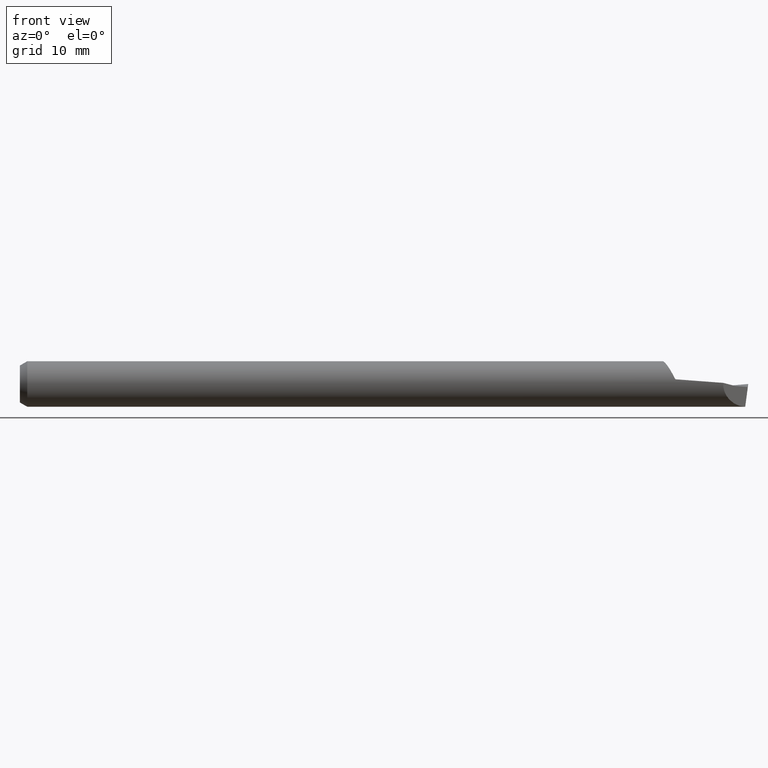
[diagram: clean part render]
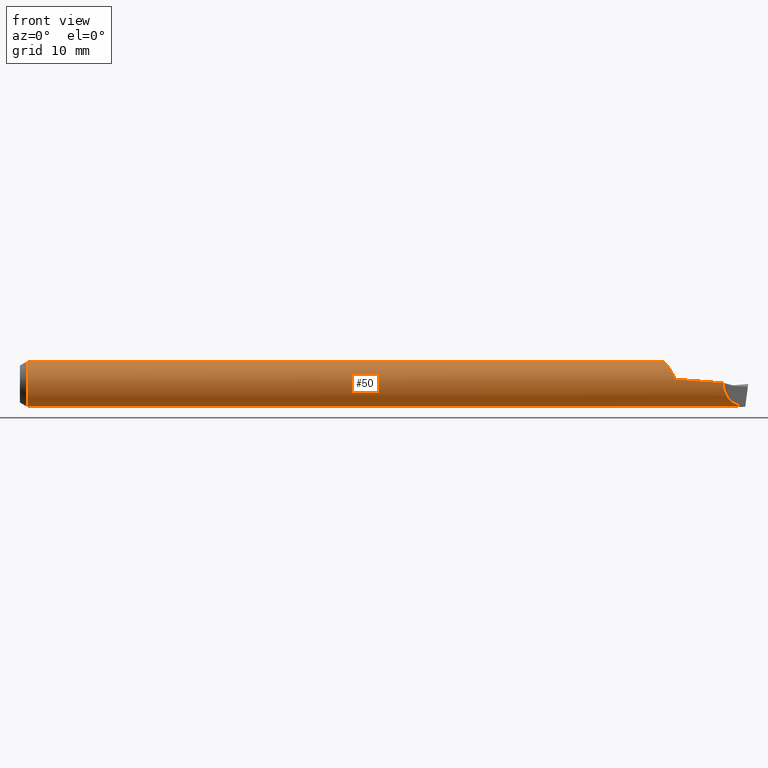
[diagram: same view with one face highlighted and labeled with its STEP entity id]
A machine part, front view. The second image highlights one B-rep face of the part: STEP entity #50.
In plain terms, the highlighted cylindrical surface (edge-blend (fillet) strip) has radius 2.3787 mm, axis along (-1, -0, -0).
Its self-contained STEP definition (entity closure, byte-faithful):
#29 = DIRECTION ( 'NONE',  ( 0.000000000000000000, 0.000000000000000000, 1.000000000000000000 ) ) ;
#47 = VECTOR ( 'NONE', #77, 39.37007874015748143 ) ;
#50 = ADVANCED_FACE ( 'NONE', ( #596 ), #456, .T. ) ;
#56 = VERTEX_POINT ( 'NONE', #669 ) ;
#63 = CARTESIAN_POINT ( 'NONE',  ( 2.660267250213738333, -0.04047724806400845171, 0.08466018272255887434 ) ) ;
#77 = DIRECTION ( 'NONE',  ( -1.000000000000000000, -0.000000000000000000, -0.000000000000000000 ) ) ;
#80 = CARTESIAN_POINT ( 'NONE',  ( 2.648853733171861347, -8.222118150690407239E-07, 0.09365456280322455307 ) ) ;
#107 = EDGE_LOOP ( 'NONE', ( #579, #659, #437, #317, #308, #114, #130, #220 ) ) ;
#114 = ORIENTED_EDGE ( 'NONE', *, *, #294, .T. ) ;
#117 = DIRECTION ( 'NONE',  ( 1.000000000000000000, -0.000000000000000000, -0.000000000000000000 ) ) ;
#123 = CARTESIAN_POINT ( 'NONE',  ( 2.897117201850305079, -0.09353279814969600592, 0.004683820052929582589 ) ) ;
#130 = ORIENTED_EDGE ( 'NONE', *, *, #411, .T. ) ;
#132 = CARTESIAN_POINT ( 'NONE',  ( 0.03057069675359059061, 0.000000000000000000, 0.000000000000000000 ) ) ;
#144 = CARTESIAN_POINT ( 'NONE',  ( 2.894336912536108919, -0.09631308746389261044, -0.05083672434967949350 ) ) ;
#152 = EDGE_CURVE ( 'NONE', #638, #416, #482, .T. ) ;
#154 = VERTEX_POINT ( 'NONE', #662 ) ;
#160 = CARTESIAN_POINT ( 'NONE',  ( 2.668957525983355783, -0.05845340694801681725, 0.07316804903374447833 ) ) ;
#169 = DIRECTION ( 'NONE',  ( -1.000000000000000000, -0.000000000000000000, -0.000000000000000000 ) ) ;
#173 = VERTEX_POINT ( 'NONE', #406 ) ;
#210 = CARTESIAN_POINT ( 'NONE',  ( 2.668921519492839511, -0.05838966857612346018, 0.07321969953285870081 ) ) ;
#212 = CARTESIAN_POINT ( 'NONE',  ( 2.676653163846024697, -0.07108318674311248087, 0.06187157980703874433 ) ) ;
#214 = AXIS2_PLACEMENT_3D ( 'NONE', #404, #291, #29 ) ;
#220 = ORIENTED_EDGE ( 'NONE', *, *, #312, .F. ) ;
#226 = CARTESIAN_POINT ( 'NONE',  ( 2.700193042709059466, -0.09159678206204596718, 0.01949988679965270963 ) ) ;
#227 = CARTESIAN_POINT ( 'NONE',  ( 2.652848608369792860, -0.01951221009786592228, 0.09225725620059177512 ) ) ;
#231 = CARTESIAN_POINT ( 'NONE',  ( 2.987553922861389655, 0.000000000000000000, -0.09364999999999999714 ) ) ;
#232 = DIRECTION ( 'NONE',  ( -1.000000000000000000, -0.000000000000000000, -0.000000000000000000 ) ) ;
#251 = CARTESIAN_POINT ( 'NONE',  ( 2.987533092774547150, -0.003116907225453840850, -0.09359811637713615073 ) ) ;
#258 = CARTESIAN_POINT ( 'NONE',  ( 2.669408579989107189, -0.05925361579904375731, 0.07252248217185128243 ) ) ;
#259 = VERTEX_POINT ( 'NONE', #310 ) ;
#265 = CARTESIAN_POINT ( 'NONE',  ( 0.03057069675359059061, 1.146881727401496266E-17, -0.09364999999999999714 ) ) ;
#269 = VERTEX_POINT ( 'NONE', #265 ) ;
#284 = CARTESIAN_POINT ( 'NONE',  ( 0.000000000000000000, 0.000000000000000000, 0.09364999999999999714 ) ) ;
#289 = CARTESIAN_POINT ( 'NONE',  ( 2.700000000000000178, 0.000000000000000000, -0.09364999999999999714 ) ) ;
#291 = DIRECTION ( 'NONE',  ( -1.000000000000000000, -0.000000000000000000, -0.000000000000000000 ) ) ;
#294 = EDGE_CURVE ( 'NONE', #154, #173, #569, .T. ) ;
#306 = CARTESIAN_POINT ( 'NONE',  ( 2.693124300786492231, -0.08870291174945736656, 0.03325054257018163206 ) ) ;
#308 = ORIENTED_EDGE ( 'NONE', *, *, #535, .F. ) ;
#310 = CARTESIAN_POINT ( 'NONE',  ( 0.03057069675359059061, 0.000000000000000000, 0.09364999999999999714 ) ) ;
#312 = EDGE_CURVE ( 'NONE', #269, #259, #554, .T. ) ;
#314 = CARTESIAN_POINT ( 'NONE',  ( 2.668578502057591617, -0.05777139929222745163, 0.07370850168012961501 ) ) ;
#317 = ORIENTED_EDGE ( 'NONE', *, *, #152, .T. ) ;
#334 = LINE ( 'NONE', #648, #47 ) ;
#378 = EDGE_CURVE ( 'NONE', #56, #269, #334, .T. ) ;
#381 = CARTESIAN_POINT ( 'NONE',  ( 2.798652350113996157, -0.09316285039222937936, 0.01207143284203153130 ) ) ;
#382 = CARTESIAN_POINT ( 'NONE',  ( 2.658214927748086431, -0.03519650015763909484, 0.08695964677823005140 ) ) ;
#383 = EDGE_CURVE ( 'NONE', #56, #492, #586, .T. ) ;
#388 = DIRECTION ( 'NONE',  ( 0.000000000000000000, 0.000000000000000000, 1.000000000000000000 ) ) ;
#402 = CARTESIAN_POINT ( 'NONE',  ( 2.987533092774547150, -0.003116907225453840850, -0.09359811637713615073 ) ) ;
#404 = CARTESIAN_POINT ( 'NONE',  ( 0.000000000000000000, 0.000000000000000000, 0.000000000000000000 ) ) ;
#406 = CARTESIAN_POINT ( 'NONE',  ( 2.648853733171861347, -8.222118150690407239E-07, 0.09365456280322455307 ) ) ;
#411 = EDGE_CURVE ( 'NONE', #173, #259, #641, .T. ) ;
#416 = VERTEX_POINT ( 'NONE', #123 ) ;
#430 = VECTOR ( 'NONE', #169, 39.37007874015748143 ) ;
#431 = CARTESIAN_POINT ( 'NONE',  ( 2.897117201850305523, -0.09353279814969600592, 0.004683820052929582589 ) ) ;
#437 = ORIENTED_EDGE ( 'NONE', *, *, #679, .T. ) ;
#441 =( BOUNDED_CURVE ( )  B_SPLINE_CURVE ( 3, ( #524, #565, #567, #672 ),
 .UNSPECIFIED., .F., .T. ) 
 B_SPLINE_CURVE_WITH_KNOTS ( ( 4, 4 ),
 ( 6.212232684215121203, 6.245521343679132364 ),
 .UNSPECIFIED. ) 
 CURVE ( )  GEOMETRIC_REPRESENTATION_ITEM ( )  RATIONAL_B_SPLINE_CURVE ( ( 1.000000000000000000, 0.9999076575611175466, 0.9999076575611175466, 1.000000000000000000 ) ) 
 REPRESENTATION_ITEM ( '' )  );
#456 = CYLINDRICAL_SURFACE ( 'NONE', #214, 0.09364999999999999714 ) ;
#465 = CARTESIAN_POINT ( 'NONE',  ( 2.669225650606402045, -0.05893110837954840253, 0.07278470785884560978 ) ) ;
#470 = CARTESIAN_POINT ( 'NONE',  ( 2.667726105917508583, -0.05622133668068138995, 0.07491812423433100165 ) ) ;
#482 =( BOUNDED_CURVE ( )  B_SPLINE_CURVE ( 3, ( #251, #604, #144, #503 ),
 .UNSPECIFIED., .F., .T. ) 
 B_SPLINE_CURVE_WITH_KNOTS ( ( 4, 4 ),
 ( 4.745677639848697282, 6.333220277242836538 ),
 .UNSPECIFIED. ) 
 CURVE ( )  GEOMETRIC_REPRESENTATION_ITEM ( )  RATIONAL_B_SPLINE_CURVE ( ( 1.000000000000000000, 0.8007742320596551444, 0.8007742320596551444, 1.000000000000000000 ) ) 
 REPRESENTATION_ITEM ( '' )  );
#492 = VERTEX_POINT ( 'NONE', #231 ) ;
#503 = CARTESIAN_POINT ( 'NONE',  ( 2.897117201850305079, -0.09353279814969600592, 0.004683820052929582589 ) ) ;
#514 =( BOUNDED_CURVE ( )  B_SPLINE_CURVE ( 2, ( #226, #381, #431 ),
 .UNSPECIFIED., .F., .T. ) 
 B_SPLINE_CURVE_WITH_KNOTS ( ( 3, 3 ),
 ( 0.6173980248220608535, 0.8679066118161342658 ),
 .UNSPECIFIED. ) 
 CURVE ( )  GEOMETRIC_REPRESENTATION_ITEM ( )  RATIONAL_B_SPLINE_CURVE ( ( 0.9785522738925219732, 0.9753364756070597164, 0.9781958891234434628 ) ) 
 REPRESENTATION_ITEM ( '' )  );
#522 = CARTESIAN_POINT ( 'NONE',  ( 2.672589433273180326, -0.06480129520882439709, 0.06794788061313325467 ) ) ;
#524 = CARTESIAN_POINT ( 'NONE',  ( 2.987553922861389655, 0.000000000000000000, -0.09364999999999999714 ) ) ;
#534 = CARTESIAN_POINT ( 'NONE',  ( 2.664964881159043841, -0.05084867784880212072, 0.07870355941290371748 ) ) ;
#535 = EDGE_CURVE ( 'NONE', #154, #416, #514, .T. ) ;
#537 = CARTESIAN_POINT ( 'NONE',  ( 2.663741057921551469, -0.04827204494520057065, 0.08030560434472563958 ) ) ;
#554 = CIRCLE ( 'NONE', #617, 0.09364999999999999714 ) ;
#565 = CARTESIAN_POINT ( 'NONE',  ( 2.987544853822105217, -0.001039208969585984866, -0.09365000000000003877 ) ) ;
#567 = CARTESIAN_POINT ( 'NONE',  ( 2.987537909818598347, -0.002078273994535821158, -0.09363270386187780292 ) ) ;
#569 = B_SPLINE_CURVE_WITH_KNOTS ( 'NONE', 3,
 ( #571, #306, #629, #212, #522, #258, #465, #160, #210, #314, #470, #657, #534, #537, #63, #382, #227, #589, #80 ),
 .UNSPECIFIED., .F., .F.,
 ( 4, 2, 2, 2, 2, 1, 2, 2, 2, 4 ),
 ( 0.000000000000000000, 0.2392568256853191966, 0.4785136513706383932, 0.4934672029759690770, 0.5009439787786306164, 0.5084207545812922113, 0.5383278577919460295, 0.5981420642132541099, 0.7177704770558663849, 0.9570273027410872713 ),
 .UNSPECIFIED. ) ;
#571 = CARTESIAN_POINT ( 'NONE',  ( 2.700193042709060354, -0.09159678206204596718, 0.01949988679965270963 ) ) ;
#579 = ORIENTED_EDGE ( 'NONE', *, *, #378, .F. ) ;
#586 = LINE ( 'NONE', #289, #597 ) ;
#589 = CARTESIAN_POINT ( 'NONE',  ( 2.650325259475817763, -0.009300277287043492297, 0.09364995429079854550 ) ) ;
#596 = FACE_OUTER_BOUND ( 'NONE', #107, .T. ) ;
#597 = VECTOR ( 'NONE', #117, 39.37007874015748143 ) ;
#604 = CARTESIAN_POINT ( 'NONE',  ( 2.931973775838467411, -0.05867622416153347314, -0.09174793772929283608 ) ) ;
#617 = AXIS2_PLACEMENT_3D ( 'NONE', #132, #232, #388 ) ;
#629 = CARTESIAN_POINT ( 'NONE',  ( 2.686920597602680871, -0.08303519900622284566, 0.04456531780849248142 ) ) ;
#638 = VERTEX_POINT ( 'NONE', #402 ) ;
#641 = LINE ( 'NONE', #284, #430 ) ;
#648 = CARTESIAN_POINT ( 'NONE',  ( 0.000000000000000000, 1.146881727401496266E-17, -0.09364999999999999714 ) ) ;
#657 = CARTESIAN_POINT ( 'NONE',  ( 2.666899447017617053, -0.05465046207729559041, 0.07606594800267731105 ) ) ;
#659 = ORIENTED_EDGE ( 'NONE', *, *, #383, .T. ) ;
#662 = CARTESIAN_POINT ( 'NONE',  ( 2.700193042709060354, -0.09159678206204596718, 0.01949988679965270963 ) ) ;
#669 = CARTESIAN_POINT ( 'NONE',  ( 2.740000000000000657, 0.000000000000000000, -0.09364999999999999714 ) ) ;
#672 = CARTESIAN_POINT ( 'NONE',  ( 2.987533092774547150, -0.003116907225453840850, -0.09359811637713615073 ) ) ;
#679 = EDGE_CURVE ( 'NONE', #492, #638, #441, .T. ) ;